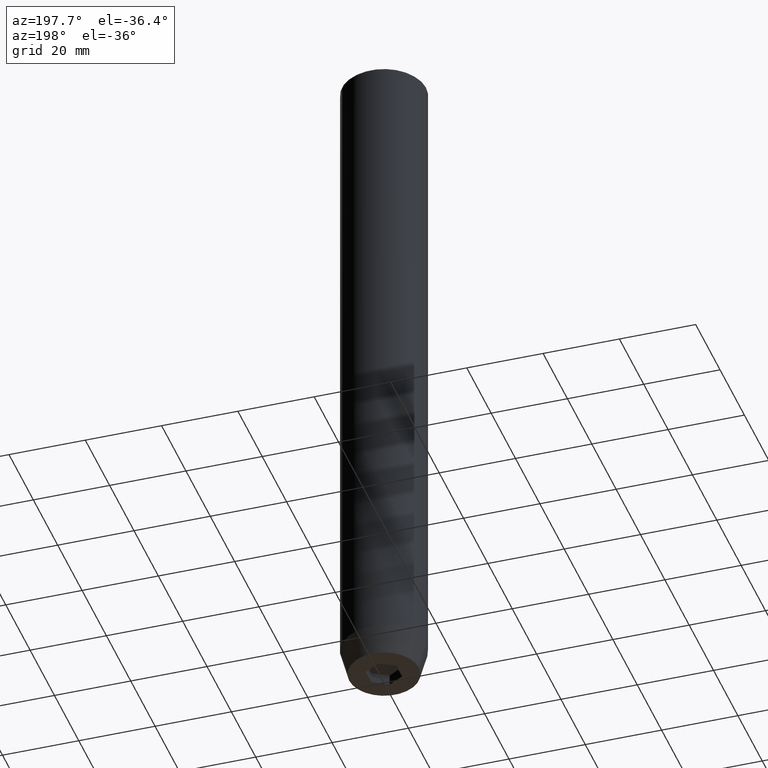
[diagram: clean part render]
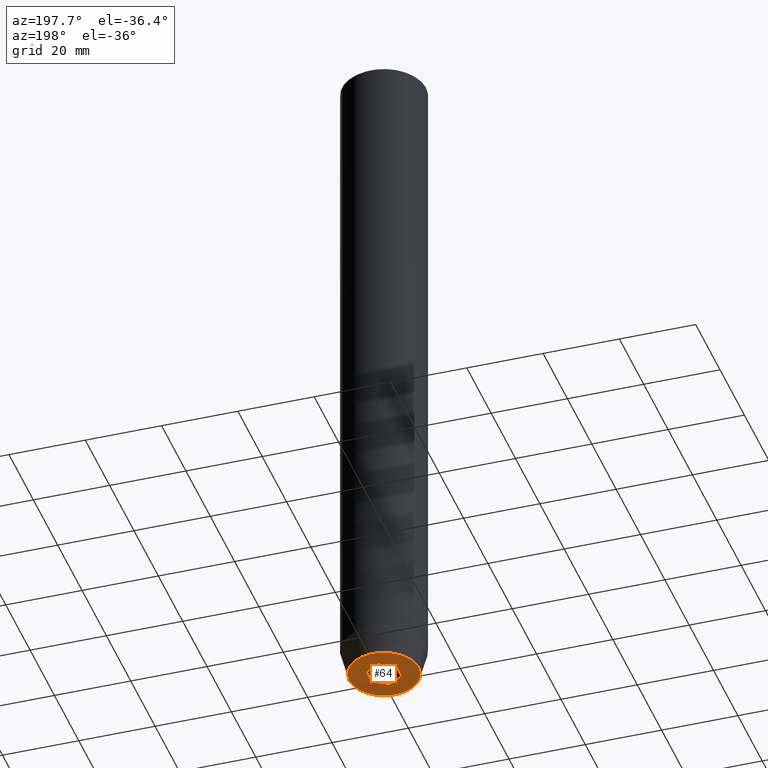
[diagram: same view with one face highlighted and labeled with its STEP entity id]
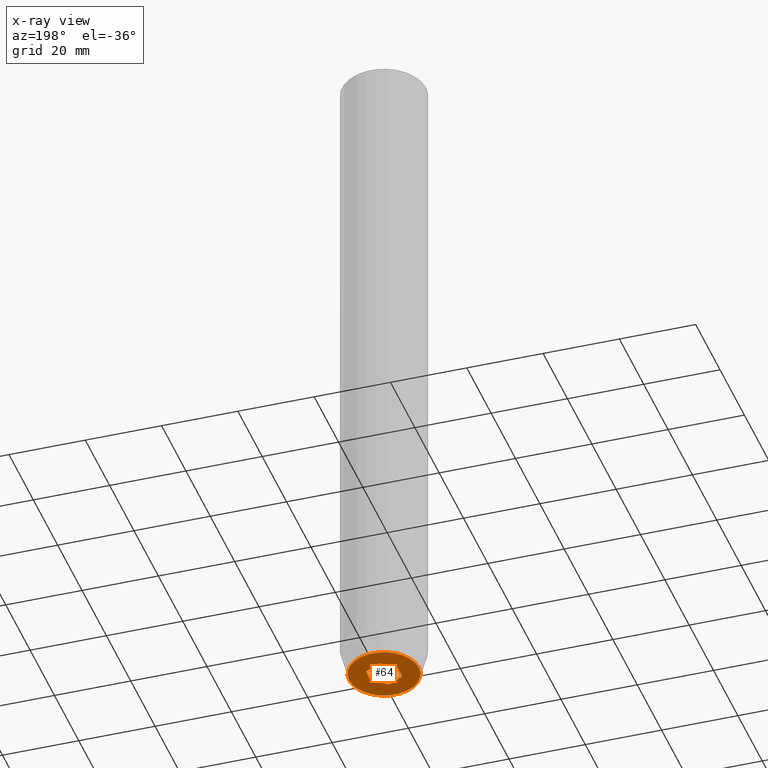
[diagram: x-ray of the same camera — body ghosted, the highlighted face saturated]
A machine part, auxiliary view. The second image highlights one B-rep face of the part: STEP entity #64.
The next image is the same camera in x-ray: the body ghosted, the highlighted face saturated — about 0% of this face is hidden behind the body in this view.
In plain terms, the highlighted planar face has unit normal (0, 0, -1).
Its self-contained STEP definition (entity closure, byte-faithful):
#1 = AXIS2_PLACEMENT_3D ( 'NONE', #90, #140, #88 ) ;
#10 = DIRECTION ( 'NONE',  ( 0.8660254037844387076, 0.5000000000000001110, 0.000000000000000000 ) ) ;
#20 = ORIENTED_EDGE ( 'NONE', *, *, #134, .F. ) ;
#22 = VERTEX_POINT ( 'NONE', #36 ) ;
#36 = CARTESIAN_POINT ( 'NONE',  ( -4.000000000000000000, -2.309401076758503368, -180.0000000000000000 ) ) ;
#51 = DIRECTION ( 'NONE',  ( -0.000000000000000000, -0.000000000000000000, 1.000000000000000000 ) ) ;
#56 = LINE ( 'NONE', #368, #152 ) ;
#64 = ADVANCED_FACE ( 'NONE', ( #556, #465 ), #312, .T. ) ;
#70 = CARTESIAN_POINT ( 'NONE',  ( -9.124355652982133691, 1.232261386766375507E-15, -180.0000000000000000 ) ) ;
#75 = EDGE_CURVE ( 'NONE', #575, #337, #545, .T. ) ;
#81 = EDGE_CURVE ( 'NONE', #239, #327, #504, .T. ) ;
#88 = DIRECTION ( 'NONE',  ( -1.000000000000000000, 0.000000000000000000, -0.000000000000000000 ) ) ;
#90 = CARTESIAN_POINT ( 'NONE',  ( 0.000000000000000000, 9.124355652982133691, -180.0000000000000000 ) ) ;
#91 = CARTESIAN_POINT ( 'NONE',  ( 9.124355652982133691, 0.000000000000000000, -180.0000000000000000 ) ) ;
#93 = LINE ( 'NONE', #319, #366 ) ;
#105 = EDGE_CURVE ( 'NONE', #327, #535, #93, .T. ) ;
#110 = VECTOR ( 'NONE', #456, 1000.000000000000000 ) ;
#111 = CARTESIAN_POINT ( 'NONE',  ( 4.000000000000000000, -2.309401076758502480, -180.0000000000000000 ) ) ;
#133 = LINE ( 'NONE', #184, #110 ) ;
#134 = EDGE_CURVE ( 'NONE', #372, #22, #56, .T. ) ;
#138 = DIRECTION ( 'NONE',  ( 1.000000000000000000, 0.000000000000000000, 0.000000000000000000 ) ) ;
#140 = DIRECTION ( 'NONE',  ( 0.000000000000000000, 0.000000000000000000, -1.000000000000000000 ) ) ;
#150 = CARTESIAN_POINT ( 'NONE',  ( 2.000000000000000888, -3.464101615137754386, -180.0000000000000000 ) ) ;
#151 = CARTESIAN_POINT ( 'NONE',  ( -4.000000000000000000, 2.309401076758503368, -180.0000000000000000 ) ) ;
#152 = VECTOR ( 'NONE', #278, 1000.000000000000114 ) ;
#159 = EDGE_CURVE ( 'NONE', #535, #292, #230, .T. ) ;
#160 = DIRECTION ( 'NONE',  ( 1.000000000000000000, 0.000000000000000000, 0.000000000000000000 ) ) ;
#162 = AXIS2_PLACEMENT_3D ( 'NONE', #561, #249, #160 ) ;
#181 = ORIENTED_EDGE ( 'NONE', *, *, #75, .F. ) ;
#184 = CARTESIAN_POINT ( 'NONE',  ( -4.000000000000000000, 0.000000000000000000, -180.0000000000000000 ) ) ;
#190 = EDGE_CURVE ( 'NONE', #22, #239, #133, .T. ) ;
#212 = EDGE_CURVE ( 'NONE', #292, #372, #328, .T. ) ;
#230 = LINE ( 'NONE', #502, #557 ) ;
#239 = VERTEX_POINT ( 'NONE', #151 ) ;
#249 = DIRECTION ( 'NONE',  ( -0.000000000000000000, -0.000000000000000000, 1.000000000000000000 ) ) ;
#270 = DIRECTION ( 'NONE',  ( 0.8660254037844385966, -0.5000000000000001110, 0.000000000000000000 ) ) ;
#276 = CARTESIAN_POINT ( 'NONE',  ( 0.000000000000000000, 0.000000000000000000, -180.0000000000000000 ) ) ;
#278 = DIRECTION ( 'NONE',  ( -0.8660254037844384856, 0.5000000000000002220, 0.000000000000000000 ) ) ;
#279 = DIRECTION ( 'NONE',  ( 0.000000000000000000, -1.000000000000000000, 0.000000000000000000 ) ) ;
#281 = VECTOR ( 'NONE', #427, 1000.000000000000114 ) ;
#287 = CARTESIAN_POINT ( 'NONE',  ( 2.168404344971008868E-16, 4.618802153517006737, -180.0000000000000000 ) ) ;
#292 = VERTEX_POINT ( 'NONE', #111 ) ;
#297 = ORIENTED_EDGE ( 'NONE', *, *, #212, .F. ) ;
#307 = ORIENTED_EDGE ( 'NONE', *, *, #159, .F. ) ;
#312 = PLANE ( 'NONE',  #1 ) ;
#319 = CARTESIAN_POINT ( 'NONE',  ( 2.000000000000000444, 3.464101615137754386, -180.0000000000000000 ) ) ;
#320 = EDGE_CURVE ( 'NONE', #337, #575, #467, .T. ) ;
#327 = VERTEX_POINT ( 'NONE', #287 ) ;
#328 = LINE ( 'NONE', #150, #281 ) ;
#337 = VERTEX_POINT ( 'NONE', #70 ) ;
#366 = VECTOR ( 'NONE', #270, 1000.000000000000000 ) ;
#368 = CARTESIAN_POINT ( 'NONE',  ( -2.000000000000000888, -3.464101615137754386, -180.0000000000000000 ) ) ;
#372 = VERTEX_POINT ( 'NONE', #396 ) ;
#378 = ORIENTED_EDGE ( 'NONE', *, *, #105, .F. ) ;
#396 = CARTESIAN_POINT ( 'NONE',  ( 4.336808689942017736E-16, -4.618802153517006737, -180.0000000000000000 ) ) ;
#427 = DIRECTION ( 'NONE',  ( -0.8660254037844384856, -0.5000000000000002220, 0.000000000000000000 ) ) ;
#445 = EDGE_LOOP ( 'NONE', ( #181, #485 ) ) ;
#453 = ORIENTED_EDGE ( 'NONE', *, *, #81, .F. ) ;
#456 = DIRECTION ( 'NONE',  ( 0.000000000000000000, 1.000000000000000000, 0.000000000000000000 ) ) ;
#465 = FACE_OUTER_BOUND ( 'NONE', #445, .T. ) ;
#467 = CIRCLE ( 'NONE', #162, 9.124355652982133691 ) ;
#485 = ORIENTED_EDGE ( 'NONE', *, *, #320, .F. ) ;
#499 = CARTESIAN_POINT ( 'NONE',  ( -2.000000000000000000, 3.464101615137754830, -180.0000000000000000 ) ) ;
#502 = CARTESIAN_POINT ( 'NONE',  ( 4.000000000000000000, 0.000000000000000000, -180.0000000000000000 ) ) ;
#504 = LINE ( 'NONE', #499, #546 ) ;
#526 = AXIS2_PLACEMENT_3D ( 'NONE', #276, #51, #138 ) ;
#535 = VERTEX_POINT ( 'NONE', #550 ) ;
#545 = CIRCLE ( 'NONE', #526, 9.124355652982133691 ) ;
#546 = VECTOR ( 'NONE', #10, 999.9999999999998863 ) ;
#550 = CARTESIAN_POINT ( 'NONE',  ( 4.000000000000000000, 2.309401076758503368, -180.0000000000000000 ) ) ;
#556 = FACE_BOUND ( 'NONE', #576, .T. ) ;
#557 = VECTOR ( 'NONE', #279, 1000.000000000000000 ) ;
#561 = CARTESIAN_POINT ( 'NONE',  ( 0.000000000000000000, 0.000000000000000000, -180.0000000000000000 ) ) ;
#571 = ORIENTED_EDGE ( 'NONE', *, *, #190, .F. ) ;
#575 = VERTEX_POINT ( 'NONE', #91 ) ;
#576 = EDGE_LOOP ( 'NONE', ( #453, #571, #20, #297, #307, #378 ) ) ;